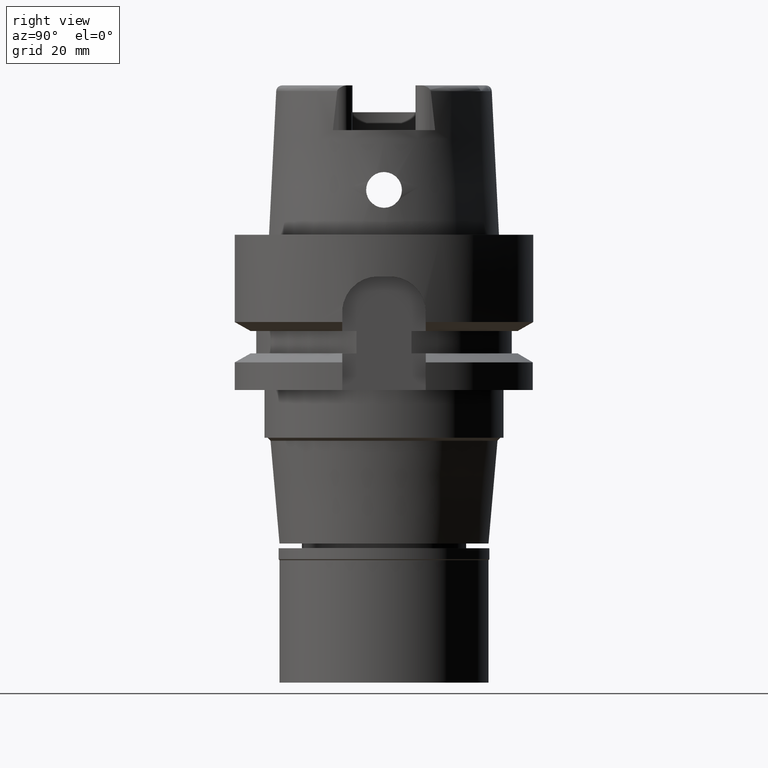
[diagram: clean part render]
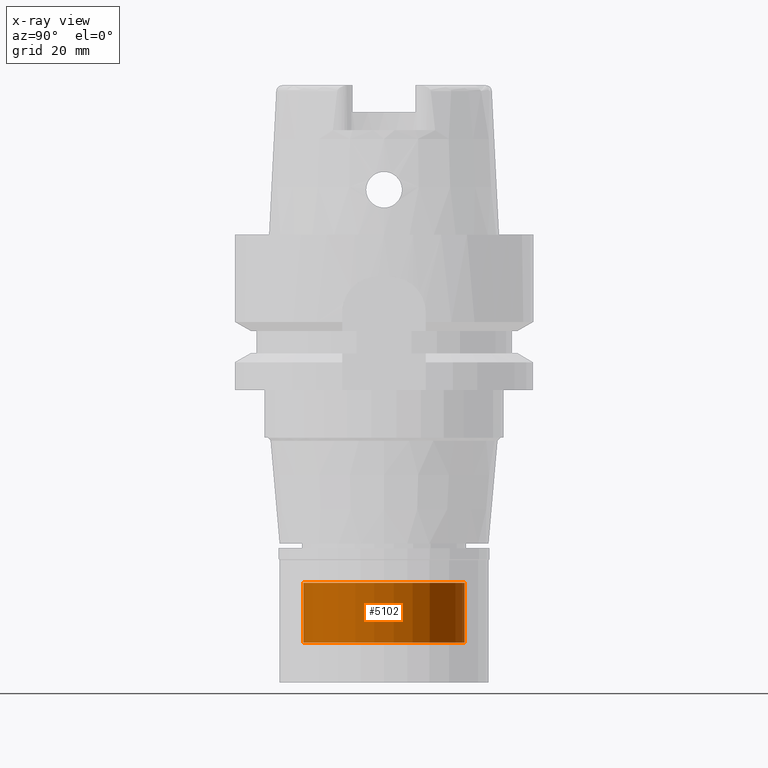
[diagram: x-ray — body ghosted, one internal face saturated and labeled with its STEP entity id]
A machine part, right view, then the same camera in x-ray: the body is ghosted and one INTERNAL B-rep face — a face not visible from any outside direction — is saturated and labeled: STEP entity #5102.
In plain terms, the highlighted cylindrical surface (partial cylindrical patch) has radius 13.5 mm, axis along (0, 0, 1).
Its self-contained STEP definition (entity closure, byte-faithful):
#358 = CARTESIAN_POINT ( 'NONE',  ( 0.0000000000000000000, 13.50000000000000000, -58.29999999999999716 ) ) ;
#386 = DIRECTION ( 'NONE',  ( 0.0000000000000000000, 0.0000000000000000000, -1.000000000000000000 ) ) ;
#669 = CARTESIAN_POINT ( 'NONE',  ( 0.0000000000000000000, -13.50000000000000000, -58.29999999999999716 ) ) ;
#744 = CARTESIAN_POINT ( 'NONE',  ( 0.0000000000000000000, 0.0000000000000000000, -72.96500000000000341 ) ) ;
#773 = DIRECTION ( 'NONE',  ( 0.0000000000000000000, 1.000000000000000000, 0.0000000000000000000 ) ) ;
#953 = CARTESIAN_POINT ( 'NONE',  ( 0.0000000000000000000, 0.0000000000000000000, -58.29999999999999716 ) ) ;
#1048 = EDGE_LOOP ( 'NONE', ( #4991, #4208, #1193, #2998 ) ) ;
#1193 = ORIENTED_EDGE ( 'NONE', *, *, #4696, .T. ) ;
#1264 = VERTEX_POINT ( 'NONE', #2086 ) ;
#1476 = VERTEX_POINT ( 'NONE', #1903 ) ;
#1561 = VERTEX_POINT ( 'NONE', #669 ) ;
#1903 = CARTESIAN_POINT ( 'NONE',  ( 0.0000000000000000000, -13.50000000000000000, -68.29999999999999716 ) ) ;
#2086 = CARTESIAN_POINT ( 'NONE',  ( 0.0000000000000000000, 13.50000000000000000, -58.29999999999999716 ) ) ;
#2103 = CARTESIAN_POINT ( 'NONE',  ( 0.0000000000000000000, -13.50000000000000000, -58.29999999999999716 ) ) ;
#2301 = VECTOR ( 'NONE', #3806, 1000.000000000000000 ) ;
#2324 = EDGE_CURVE ( 'NONE', #1264, #2605, #2902, .T. ) ;
#2435 = DIRECTION ( 'NONE',  ( 0.0000000000000000000, 0.0000000000000000000, 1.000000000000000000 ) ) ;
#2605 = VERTEX_POINT ( 'NONE', #2976 ) ;
#2704 = DIRECTION ( 'NONE',  ( 0.0000000000000000000, 0.0000000000000000000, -1.000000000000000000 ) ) ;
#2811 = VECTOR ( 'NONE', #386, 1000.000000000000000 ) ;
#2902 = LINE ( 'NONE', #358, #2811 ) ;
#2976 = CARTESIAN_POINT ( 'NONE',  ( 0.0000000000000000000, 13.50000000000000000, -68.29999999999999716 ) ) ;
#2998 = ORIENTED_EDGE ( 'NONE', *, *, #2324, .F. ) ;
#3003 = CARTESIAN_POINT ( 'NONE',  ( 0.0000000000000000000, 0.0000000000000000000, -68.29999999999999716 ) ) ;
#3014 = CIRCLE ( 'NONE', #3190, 13.50000000000000000 ) ;
#3187 = CIRCLE ( 'NONE', #5419, 13.50000000000000000 ) ;
#3190 = AXIS2_PLACEMENT_3D ( 'NONE', #3003, #4676, #4712 ) ;
#3630 = AXIS2_PLACEMENT_3D ( 'NONE', #744, #2435, #773 ) ;
#3799 = EDGE_CURVE ( 'NONE', #1561, #1476, #4731, .T. ) ;
#3806 = DIRECTION ( 'NONE',  ( 0.0000000000000000000, 0.0000000000000000000, -1.000000000000000000 ) ) ;
#4208 = ORIENTED_EDGE ( 'NONE', *, *, #3799, .T. ) ;
#4414 = DIRECTION ( 'NONE',  ( 0.0000000000000000000, 1.000000000000000000, 0.0000000000000000000 ) ) ;
#4471 = EDGE_CURVE ( 'NONE', #1264, #1561, #3187, .T. ) ;
#4565 = FACE_OUTER_BOUND ( 'NONE', #1048, .T. ) ;
#4676 = DIRECTION ( 'NONE',  ( 0.0000000000000000000, 0.0000000000000000000, 1.000000000000000000 ) ) ;
#4696 = EDGE_CURVE ( 'NONE', #1476, #2605, #3014, .T. ) ;
#4712 = DIRECTION ( 'NONE',  ( 0.0000000000000000000, -1.000000000000000000, 0.0000000000000000000 ) ) ;
#4731 = LINE ( 'NONE', #2103, #2301 ) ;
#4991 = ORIENTED_EDGE ( 'NONE', *, *, #4471, .T. ) ;
#5012 = CYLINDRICAL_SURFACE ( 'NONE', #3630, 13.50000000000000000 ) ;
#5102 = ADVANCED_FACE ( 'NONE', ( #4565 ), #5012, .T. ) ;
#5419 = AXIS2_PLACEMENT_3D ( 'NONE', #953, #2704, #4414 ) ;